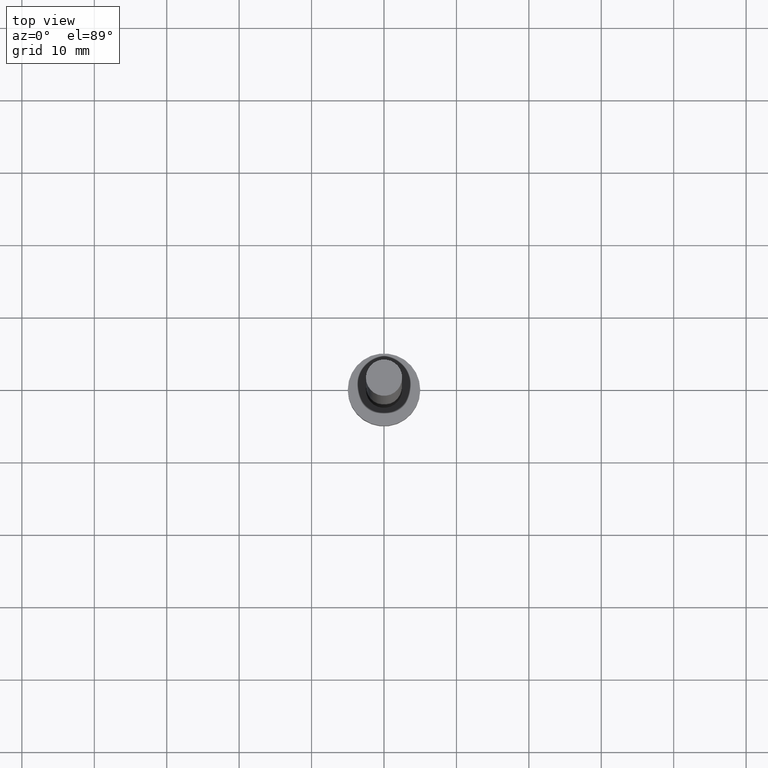
[diagram: clean part render]
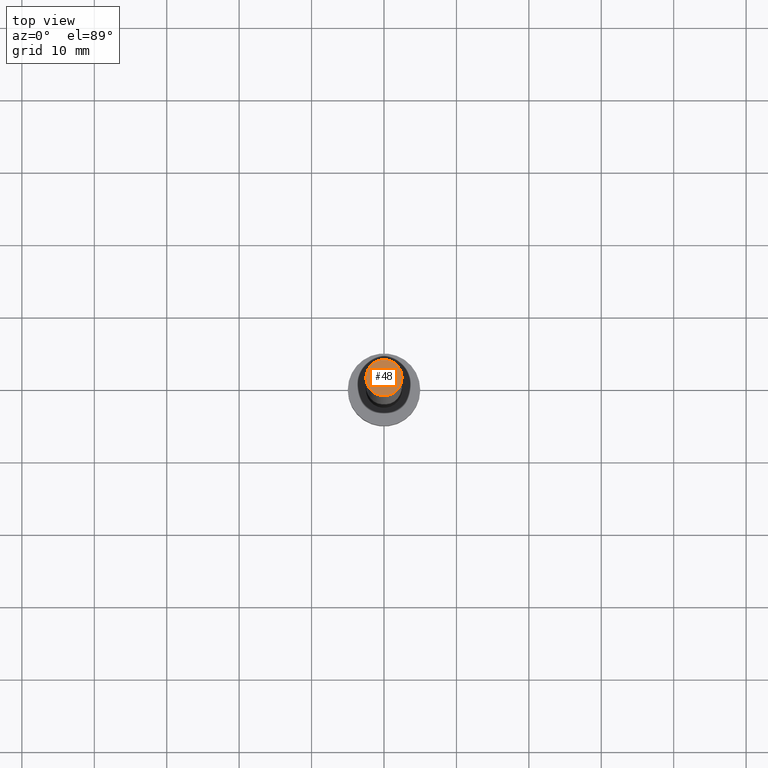
[diagram: same view with one face highlighted and labeled with its STEP entity id]
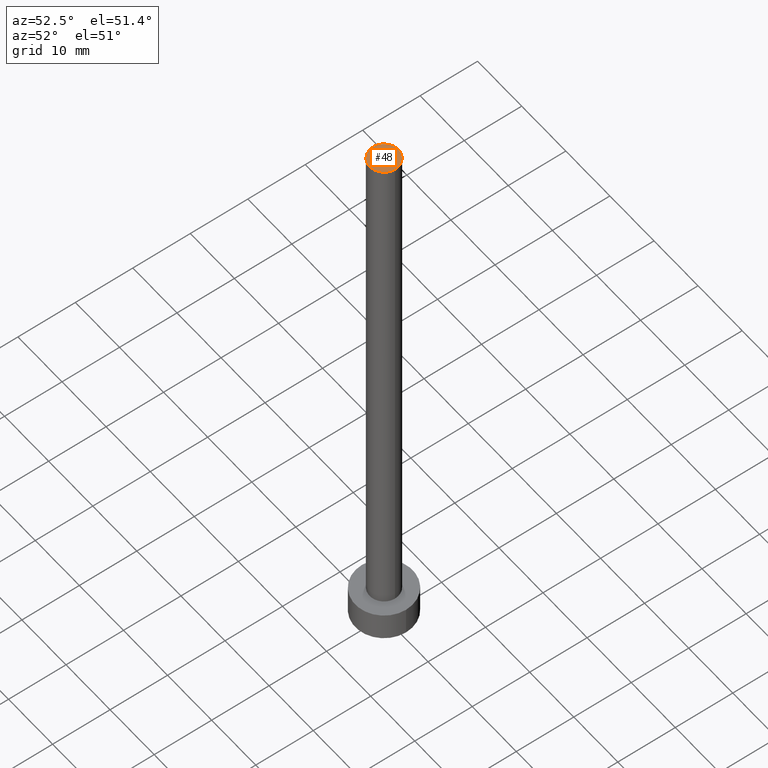
[diagram: same view with one face highlighted and labeled with its STEP entity id]
A machine part, top view. The second image highlights one B-rep face of the part: STEP entity #48.
A second angle (auxiliary view) of the same face is appended — the face is thin or edge-on in the first view.
In plain terms, the highlighted planar face has unit normal (0, 0, 1).
Its self-contained STEP definition (entity closure, byte-faithful):
#11 = DIRECTION ( 'NONE',  ( 1.000000000000000000, 0.000000000000000000, 0.000000000000000000 ) ) ;
#26 = CARTESIAN_POINT ( 'NONE',  ( 0.000000000000000000, 0.000000000000000000, 100.0000000000000000 ) ) ;
#30 = DIRECTION ( 'NONE',  ( 0.000000000000000000, 0.000000000000000000, 1.000000000000000000 ) ) ;
#31 = CARTESIAN_POINT ( 'NONE',  ( 0.000000000000000000, 0.000000000000000000, 100.0000000000000000 ) ) ;
#33 = CIRCLE ( 'NONE', #147, 2.500000000000000000 ) ;
#44 = FACE_OUTER_BOUND ( 'NONE', #80, .T. ) ;
#46 = DIRECTION ( 'NONE',  ( 1.000000000000000000, 0.000000000000000000, -0.000000000000000000 ) ) ;
#48 = ADVANCED_FACE ( 'NONE', ( #44 ), #75, .T. ) ;
#51 = DIRECTION ( 'NONE',  ( 0.000000000000000000, 0.000000000000000000, 1.000000000000000000 ) ) ;
#60 = VERTEX_POINT ( 'NONE', #252 ) ;
#67 = CARTESIAN_POINT ( 'NONE',  ( 0.000000000000000000, 0.000000000000000000, 100.0000000000000000 ) ) ;
#71 = CARTESIAN_POINT ( 'NONE',  ( -2.500000000000000000, 0.000000000000000000, 100.0000000000000000 ) ) ;
#75 = PLANE ( 'NONE',  #142 ) ;
#80 = EDGE_LOOP ( 'NONE', ( #200, #216 ) ) ;
#89 = AXIS2_PLACEMENT_3D ( 'NONE', #67, #30, #11 ) ;
#114 = EDGE_CURVE ( 'NONE', #60, #194, #33, .T. ) ;
#120 = EDGE_CURVE ( 'NONE', #194, #60, #181, .T. ) ;
#142 = AXIS2_PLACEMENT_3D ( 'NONE', #31, #51, #46 ) ;
#147 = AXIS2_PLACEMENT_3D ( 'NONE', #26, #231, #172 ) ;
#172 = DIRECTION ( 'NONE',  ( 1.000000000000000000, 0.000000000000000000, 0.000000000000000000 ) ) ;
#181 = CIRCLE ( 'NONE', #89, 2.500000000000000000 ) ;
#194 = VERTEX_POINT ( 'NONE', #71 ) ;
#200 = ORIENTED_EDGE ( 'NONE', *, *, #120, .T. ) ;
#216 = ORIENTED_EDGE ( 'NONE', *, *, #114, .T. ) ;
#231 = DIRECTION ( 'NONE',  ( 0.000000000000000000, 0.000000000000000000, 1.000000000000000000 ) ) ;
#252 = CARTESIAN_POINT ( 'NONE',  ( 2.500000000000000000, 3.061616997868383141E-16, 100.0000000000000000 ) ) ;